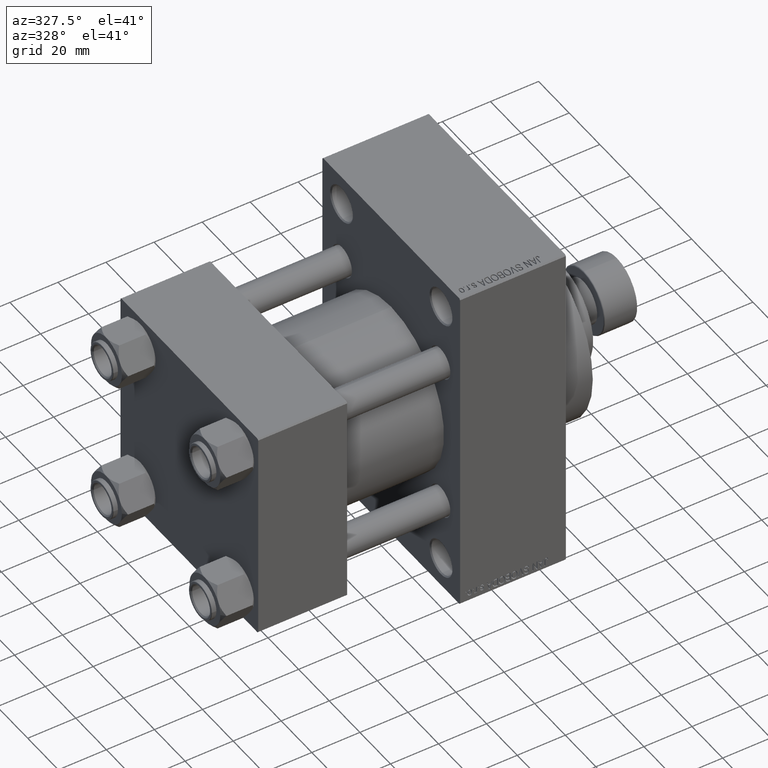
[diagram: clean part render]
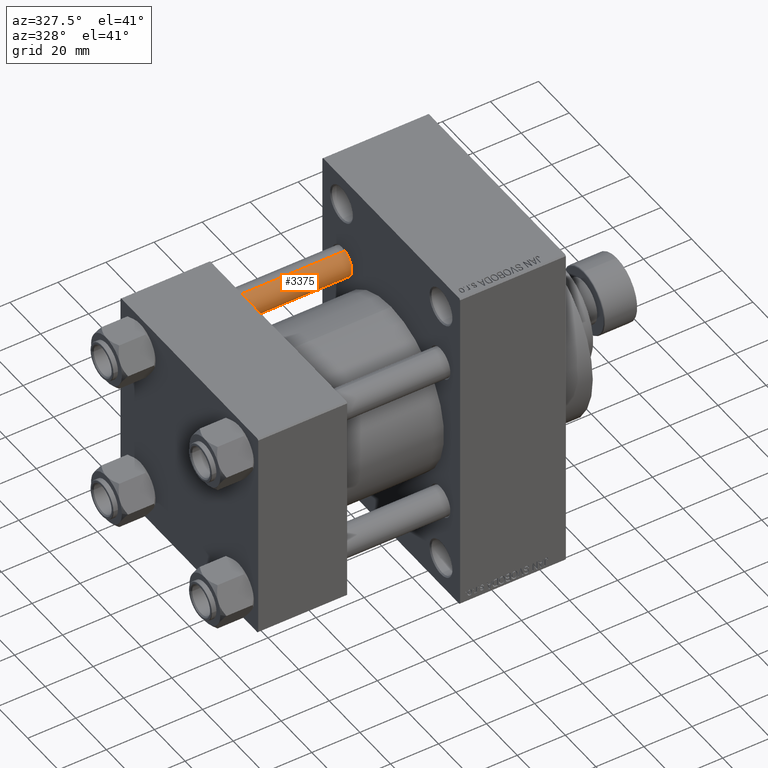
[diagram: same view with one face highlighted and labeled with its STEP entity id]
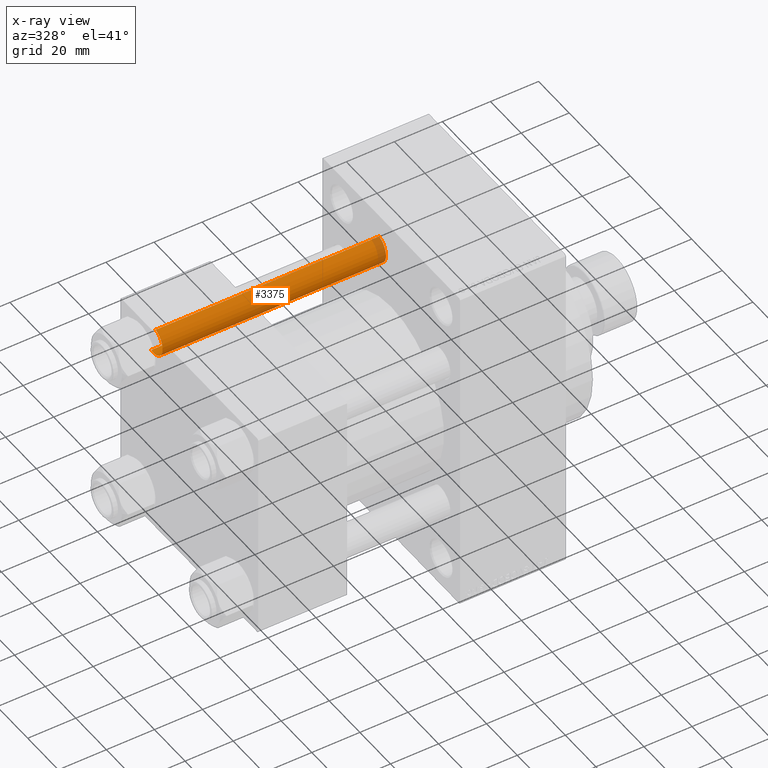
[diagram: x-ray of the same camera — body ghosted, the highlighted face saturated]
A machine part, auxiliary view. The second image highlights one B-rep face of the part: STEP entity #3375.
The next image is the same camera in x-ray: the body ghosted, the highlighted face saturated — about 4% of this face is hidden behind the body in this view.
In plain terms, the highlighted cylindrical surface (edge-blend (fillet) strip) has radius 6 mm, axis along (-1, -0, 0).
Its self-contained STEP definition (entity closure, byte-faithful):
#1206 = DIRECTION ( 'NONE',  ( -0.000000000000000000, -0.000000000000000000, -1.000000000000000000 ) ) ;
#1691 = CARTESIAN_POINT ( 'NONE',  ( 0.000000000000000000, 0.000000000000000000, 0.5000000000000281997 ) ) ;
#2906 = DIRECTION ( 'NONE',  ( 1.000000000000000000, 0.000000000000000000, 0.000000000000000000 ) ) ;
#3375 = ADVANCED_FACE ( 'NONE', ( #34233 ), #45330, .T. ) ;
#4605 = CARTESIAN_POINT ( 'NONE',  ( 0.000000000000000000, 0.000000000000000000, 94.00000000000000000 ) ) ;
#4975 = AXIS2_PLACEMENT_3D ( 'NONE', #20520, #35917, #2906 ) ;
#7166 = VECTOR ( 'NONE', #20467, 1000.000000000000000 ) ;
#9670 = ORIENTED_EDGE ( 'NONE', *, *, #13059, .T. ) ;
#11135 = AXIS2_PLACEMENT_3D ( 'NONE', #4605, #1206, #19323 ) ;
#12517 = CARTESIAN_POINT ( 'NONE',  ( 6.000000000000000888, 7.347880794884120722E-16, 0.5000000000000281997 ) ) ;
#13059 = EDGE_CURVE ( 'NONE', #42167, #15573, #19153, .T. ) ;
#15573 = VERTEX_POINT ( 'NONE', #12517 ) ;
#15582 = CARTESIAN_POINT ( 'NONE',  ( 6.000000000000000888, 7.347880794884120722E-16, 94.00000000000000000 ) ) ;
#18448 = CARTESIAN_POINT ( 'NONE',  ( -6.000000000000000888, 0.000000000000000000, 0.5000000000000281997 ) ) ;
#18506 = DIRECTION ( 'NONE',  ( -0.000000000000000000, -0.000000000000000000, -1.000000000000000000 ) ) ;
#18519 = CARTESIAN_POINT ( 'NONE',  ( 6.000000000000000888, 7.347880794884120722E-16, 93.49999999999998579 ) ) ;
#19153 = CIRCLE ( 'NONE', #36039, 6.000000000000000888 ) ;
#19323 = DIRECTION ( 'NONE',  ( -1.000000000000000000, 0.000000000000000000, 0.000000000000000000 ) ) ;
#19637 = CARTESIAN_POINT ( 'NONE',  ( -6.000000000000000888, 0.000000000000000000, 93.49999999999998579 ) ) ;
#20467 = DIRECTION ( 'NONE',  ( -0.000000000000000000, -0.000000000000000000, -1.000000000000000000 ) ) ;
#20520 = CARTESIAN_POINT ( 'NONE',  ( 0.000000000000000000, 0.000000000000000000, 93.49999999999998579 ) ) ;
#23622 = EDGE_LOOP ( 'NONE', ( #44879, #44407, #46897, #9670 ) ) ;
#25115 = VERTEX_POINT ( 'NONE', #19637 ) ;
#28499 = EDGE_CURVE ( 'NONE', #30376, #15573, #41127, .T. ) ;
#30376 = VERTEX_POINT ( 'NONE', #18519 ) ;
#34233 = FACE_OUTER_BOUND ( 'NONE', #23622, .T. ) ;
#34552 = EDGE_CURVE ( 'NONE', #25115, #42167, #39478, .T. ) ;
#35193 = DIRECTION ( 'NONE',  ( -0.000000000000000000, -0.000000000000000000, 1.000000000000000000 ) ) ;
#35917 = DIRECTION ( 'NONE',  ( 0.000000000000000000, 0.000000000000000000, -1.000000000000000000 ) ) ;
#36039 = AXIS2_PLACEMENT_3D ( 'NONE', #1691, #35193, #45820 ) ;
#38345 = EDGE_CURVE ( 'NONE', #30376, #25115, #47305, .T. ) ;
#39478 = LINE ( 'NONE', #46245, #7166 ) ;
#41127 = LINE ( 'NONE', #15582, #42579 ) ;
#42167 = VERTEX_POINT ( 'NONE', #18448 ) ;
#42579 = VECTOR ( 'NONE', #18506, 1000.000000000000000 ) ;
#44407 = ORIENTED_EDGE ( 'NONE', *, *, #38345, .T. ) ;
#44879 = ORIENTED_EDGE ( 'NONE', *, *, #28499, .F. ) ;
#45330 = CYLINDRICAL_SURFACE ( 'NONE', #11135, 6.000000000000000888 ) ;
#45820 = DIRECTION ( 'NONE',  ( 1.000000000000000000, 0.000000000000000000, 0.000000000000000000 ) ) ;
#46245 = CARTESIAN_POINT ( 'NONE',  ( -6.000000000000000888, 0.000000000000000000, 94.00000000000000000 ) ) ;
#46897 = ORIENTED_EDGE ( 'NONE', *, *, #34552, .T. ) ;
#47305 = CIRCLE ( 'NONE', #4975, 6.000000000000000888 ) ;